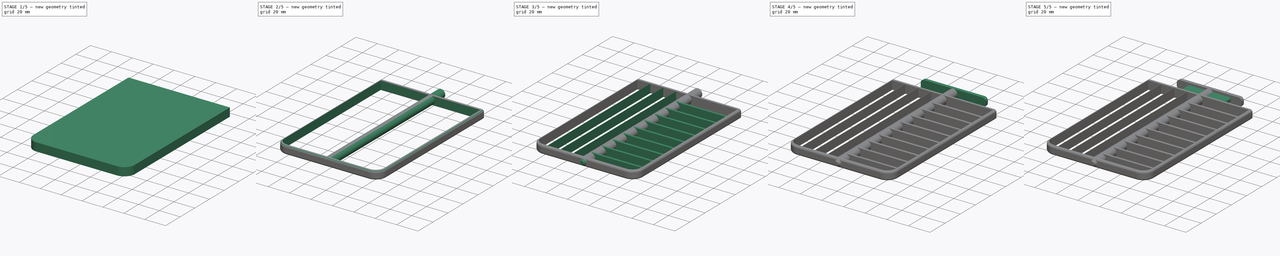
[diagram: build sequence overview — one tinted view per stage of 5, left to right]
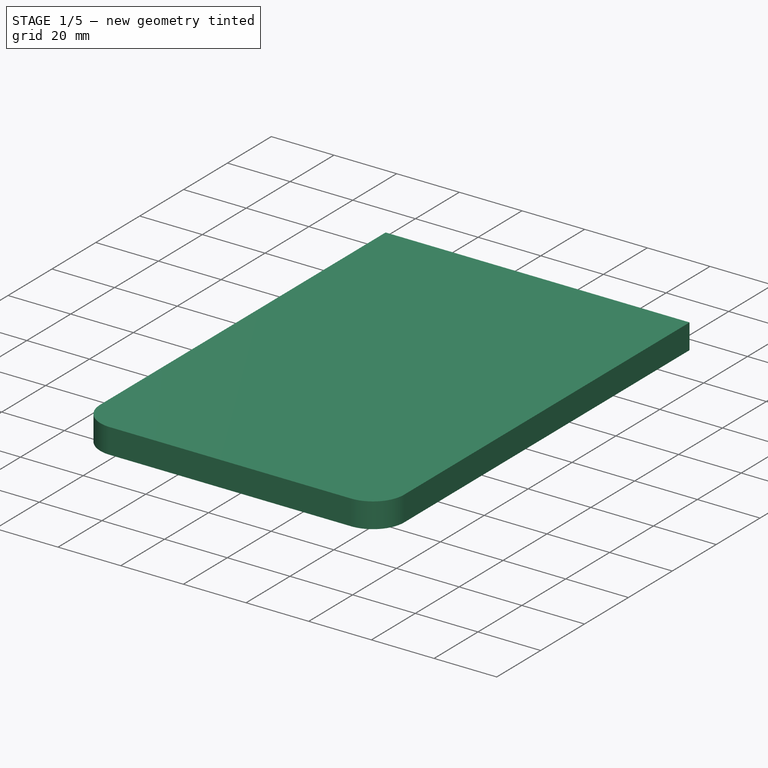
[diagram: stage 1 of 5 — iso view after this stage's code; geometry added in this stage tinted green]
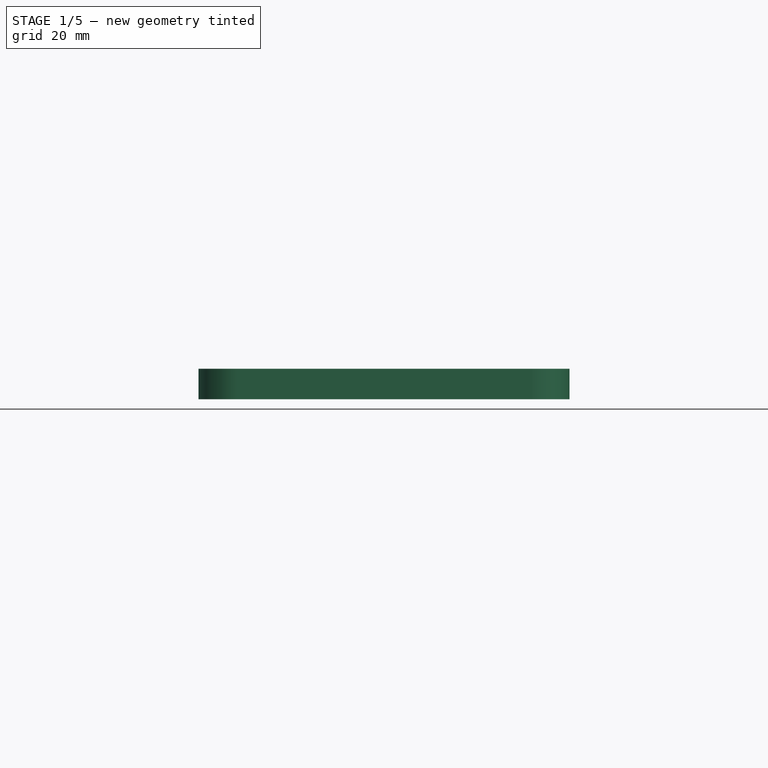
[diagram: stage 1 of 5 — front view after this stage's code; geometry added in this stage tinted green]
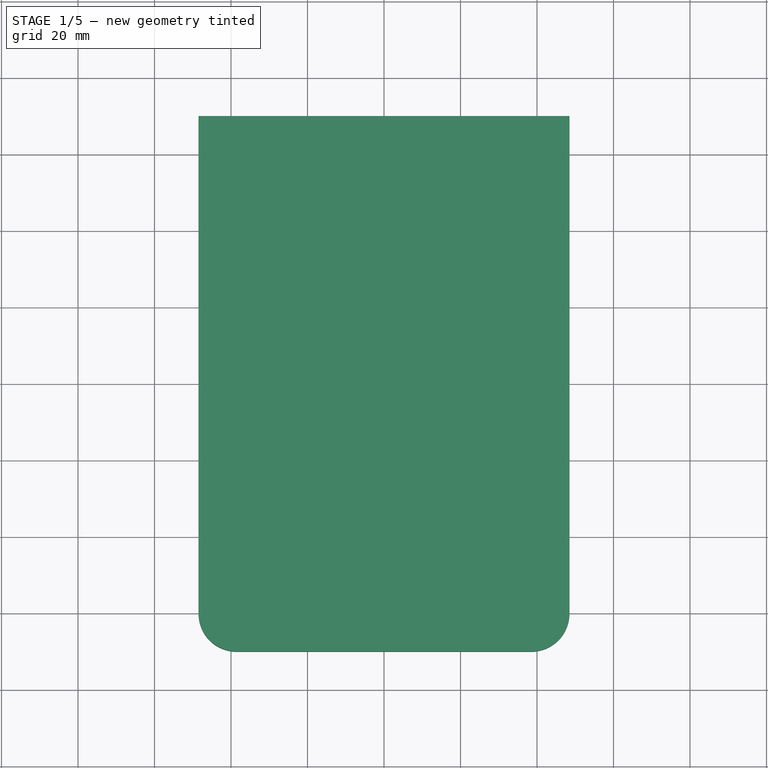
[diagram: stage 1 of 5 — top view after this stage's code; geometry added in this stage tinted green]
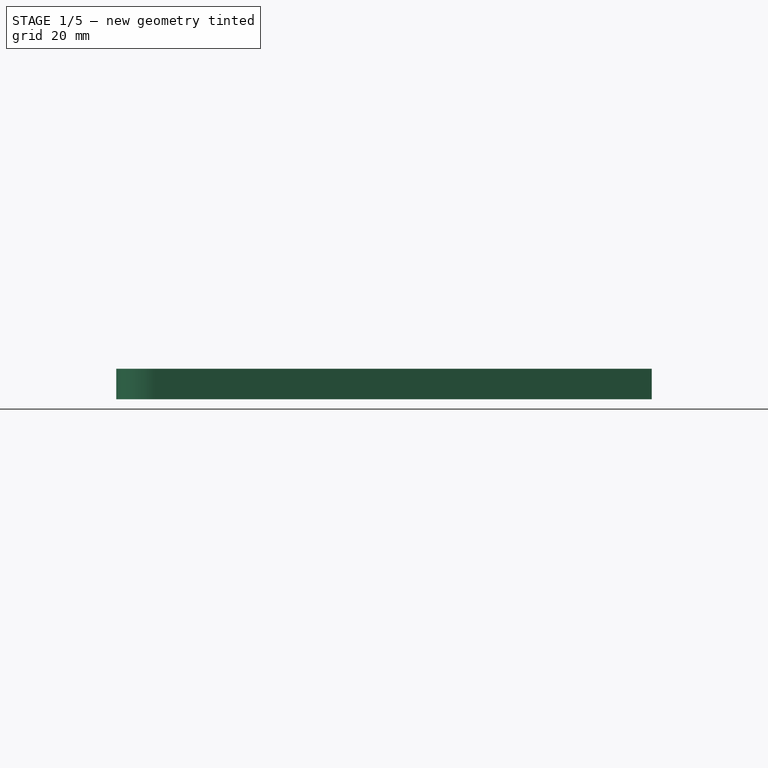
[diagram: stage 1 of 5 — right view after this stage's code; geometry added in this stage tinted green]
FCSTD DOCUMENT  (FreeCAD 1.0R38806 (Git))
Label: CheeseCutter 5
License: All rights reserved
LicenseURL: https://en.wikipedia.org/wiki/All_rights_reserved
objects: PartDesign::Fillet×9, Sketcher::SketchObject×8, PartDesign::Pad×7, PartDesign::Pocket×1, PartDesign::Body×1
note: 68 computed .brp shape members not serialized (recipe doc carries the construction recipe); baked Part::Feature solids carry a one-line shape summary decoded from their .brp

FEATURE [Sketcher::SketchObject] Sketch
  ArcFitTolerance = 1e-06
  AttachmentSupport = -> [XY_Plane]
  FullyConstrained = true
  MakeInternals = false
  MapMode = 5
  sketch-geometry (5):
    g0: LineSegment StartX=-48.5 StartY=-70 StartZ=0 EndX=48.5 EndY=-70 EndZ=0
    g1: LineSegment StartX=48.5 StartY=-70 StartZ=0 EndX=48.5 EndY=70 EndZ=0
    g2: LineSegment StartX=48.5 StartY=70 StartZ=0 EndX=-48.5 EndY=70 EndZ=0
    g3: LineSegment StartX=-48.5 StartY=70 StartZ=0 EndX=-48.5 EndY=-70 EndZ=0
    g4: GeomPoint [constr] X=0 Y=0 Z=0
  constraints (12):
    c: Coincident(g0,g1)
    c: Coincident(g1,g2)
    c: Coincident(g2,g3)
    c: Coincident(g3,g0)
    c: Horizontal(g0)
    c: Horizontal(g2)
    c: Vertical(g1)
    c: Vertical(g3)
    c: Symmetric(g2,g0,g4)
    c: Distance(g1,g3) = 97  'extWidth'
    c: Distance(g0,g2) = 140  'extHeight'
    c: Coincident(g4,g-1)
FEATURE [PartDesign::Pad] Pad
  Direction = (0,0,1)
  Length = 8
  Length2 = 10
  Midplane = true
  Profile = -> Sketch
  ReferenceAxis = -> Sketch [N_Axis]
  Refine = true
  Suppressed = false
  Type = 0
FEATURE [PartDesign::Fillet] Fillet
  Base = -> Pad [Edge1]
  BaseFeature = -> Pad
  Radius = 10
  Refine = true
  SupportTransform = false
  Suppressed = false
  UseAllEdges = false
FEATURE [PartDesign::Fillet] Fillet001
  Base = -> Fillet [Edge3]
  BaseFeature = -> Fillet
  Radius = 10
  Refine = true
  SupportTransform = false
  Suppressed = false
  UseAllEdges = false
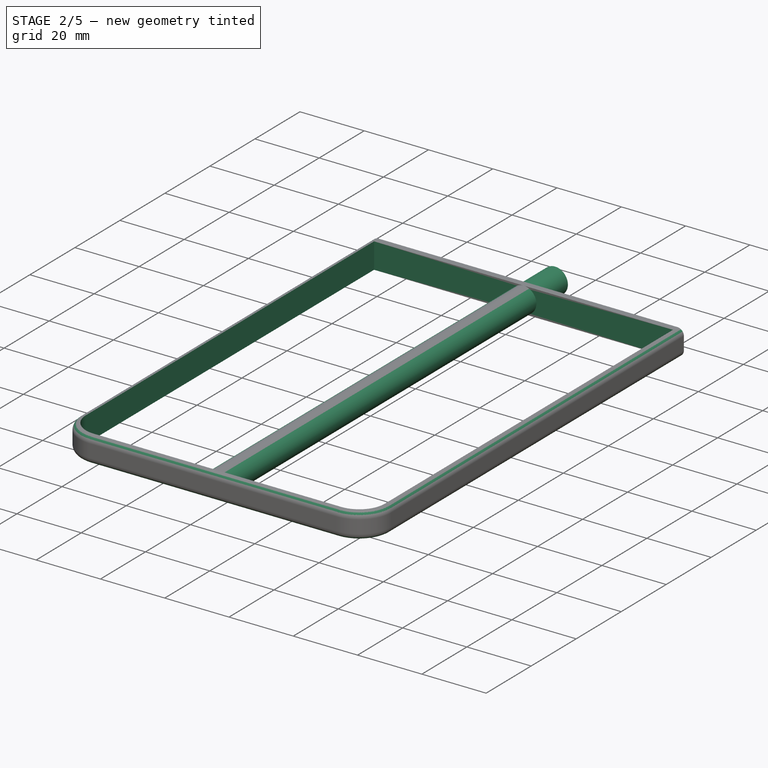
[diagram: stage 2 of 5 — iso view after this stage's code; geometry added in this stage tinted green]
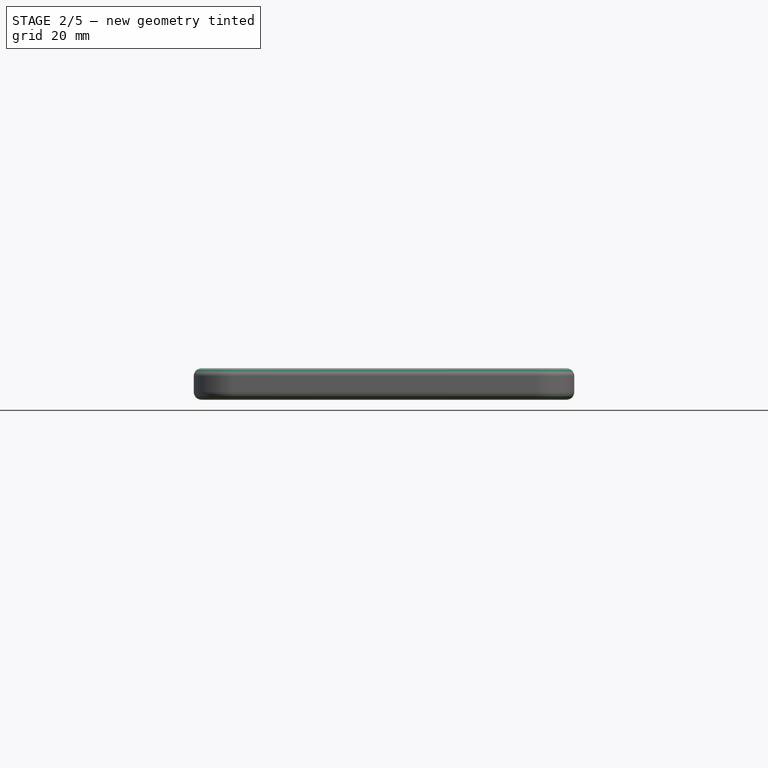
[diagram: stage 2 of 5 — front view after this stage's code; geometry added in this stage tinted green]
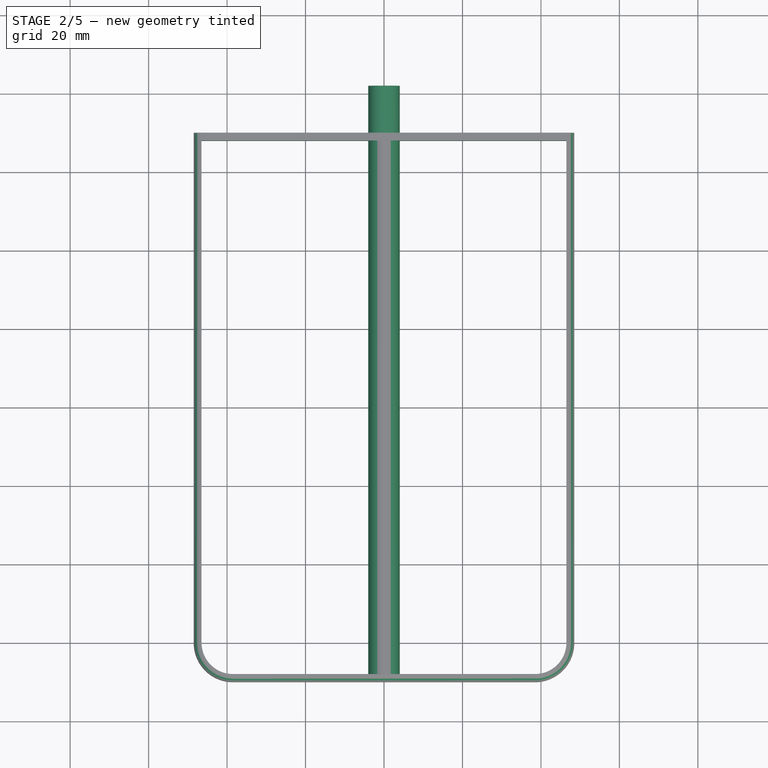
[diagram: stage 2 of 5 — top view after this stage's code; geometry added in this stage tinted green]
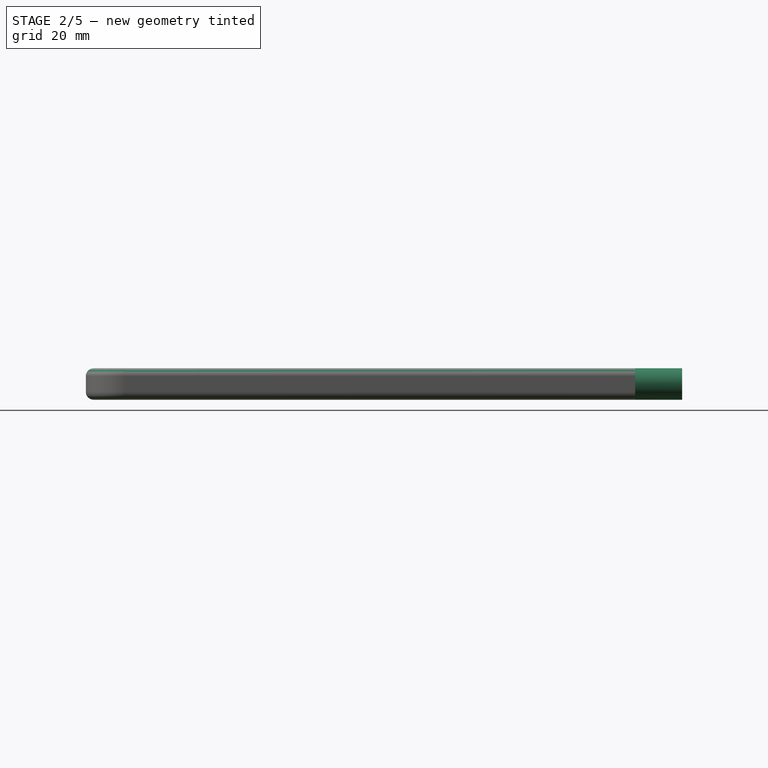
[diagram: stage 2 of 5 — right view after this stage's code; geometry added in this stage tinted green]
FEATURE [Sketcher::SketchObject] Sketch001
  ArcFitTolerance = 1e-06
  AttachmentSupport = -> [Fillet001]
  FullyConstrained = true
  MakeInternals = false
  MapMode = 5
  Placement = pos=(0,0,4) rot=(0,0,1;0rad)
  sketch-geometry (9):
    g0: LineSegment StartX=-38.5 StartY=-68 StartZ=0 EndX=38.5 EndY=-68 EndZ=0
    g1: LineSegment StartX=46.5 StartY=-60 StartZ=0 EndX=46.5 EndY=68 EndZ=0
    g2: LineSegment StartX=46.5 StartY=68 StartZ=0 EndX=-46.5 EndY=68 EndZ=0
    g3: LineSegment StartX=-46.5 StartY=68 StartZ=0 EndX=-46.5 EndY=-60 EndZ=0
    g4: GeomPoint [constr] X=0 Y=0 Z=0
    g5: ArcOfCircle CenterX=-38.5 CenterY=-60 CenterZ=0 NormalX=0 NormalY=0 NormalZ=1 AngleXU=0 Radius=8 StartAngle=3.14159 EndAngle=4.71239
    g6: GeomPoint [constr] X=-46.5 Y=-68 Z=0
    g7: ArcOfCircle CenterX=38.5 CenterY=-60 CenterZ=0 NormalX=0 NormalY=0 NormalZ=1 AngleXU=0 Radius=8 StartAngle=4.71239 EndAngle=6.28319
    g8: GeomPoint [constr] X=46.5 Y=-68 Z=0
  constraints (20):
    c: Coincident(g1,g2)
    c: Coincident(g2,g3)
    c: Horizontal(g0)
    c: Horizontal(g2)
    c: Vertical(g1)
    c: Vertical(g3)
    c: Symmetric(g2,g6,g4)
    c: Distance(g8,g6) = 93
    c: Distance(g6,g2) = 136
    c: Coincident(g4,g-1)
    c: PointOnObject(g6,g3)
    c: PointOnObject(g6,g0)
    c: Tangent(g3,g5) = -1.5708
    c: Tangent(g0,g5) = -1.5708
    c: Radius(g5) = 8
    c: PointOnObject(g8,g1)
    c: PointOnObject(g8,g0)
    c: Tangent(g1,g7) = -1.5708
    c: Tangent(g0,g7) = -1.5708
    c: Radius(g7) = 8
FEATURE [PartDesign::Pocket] Pocket
  BaseFeature = -> Fillet001
  Direction = (0,0,-1)
  Length = 5
  Length2 = 5
  Profile = -> Sketch001
  ReferenceAxis = -> Sketch001 [N_Axis]
  Refine = true
  Suppressed = false
  Type = 1
FEATURE [PartDesign::Fillet] Fillet002
  Base = -> Pocket [Edge21,Edge19,Edge4,Edge17,Edge20]
  BaseFeature = -> Pocket
  Radius = 1.99
  Refine = true
  SupportTransform = false
  Suppressed = false
  UseAllEdges = false
FEATURE [PartDesign::Fillet] Fillet003
  Base = -> Fillet002 [Edge12,Edge6,Edge3,Edge11,Edge13]
  BaseFeature = -> Fillet002
  Radius = 1.99
  Refine = true
  SupportTransform = false
  Suppressed = false
  UseAllEdges = false
FEATURE [Sketcher::SketchObject] Sketch002
  ArcFitTolerance = 1e-06
  AttachmentSupport = -> [Fillet003]
  FullyConstrained = true
  MakeInternals = false
  MapMode = 5
  Placement = pos=(0,-68,0) rot=(0,0.707107,0.707107;3.14159rad)
  sketch-geometry (1):
    g0: Circle CenterX=0 CenterY=0 CenterZ=0 NormalX=0 NormalY=0 NormalZ=1 AngleXU=0 Radius=4
  constraints (2):
    c: Diameter(g0) = 8
    c: Coincident(g0,g-1)
FEATURE [PartDesign::Pad] Pad001
  BaseFeature = -> Fillet003
  Direction = (0,1,-2e-16)
  Length = 150
  Length2 = 10
  Profile = -> Sketch002
  ReferenceAxis = -> Sketch002 [N_Axis]
  Refine = true
  Suppressed = false
  Type = 0
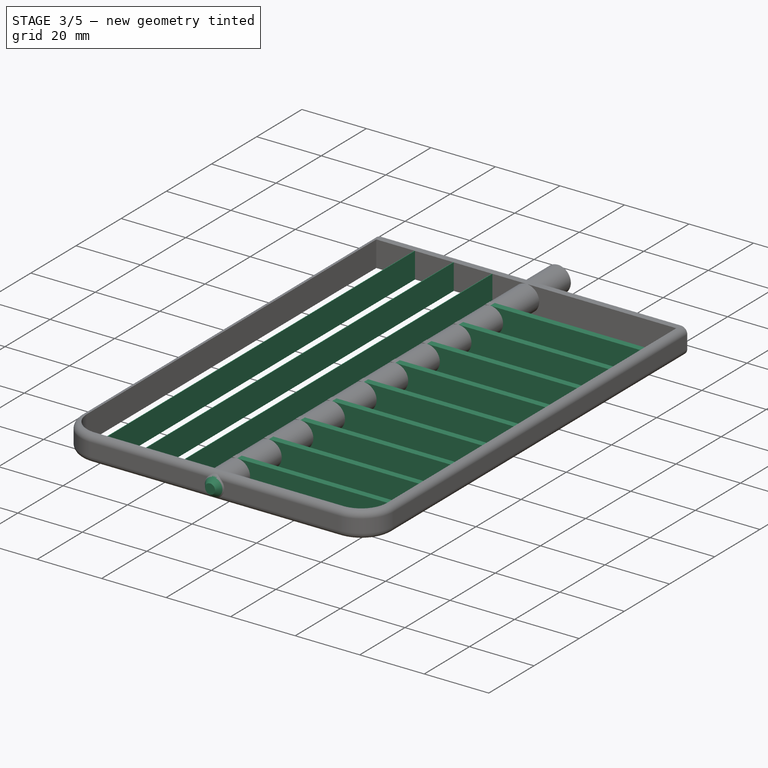
[diagram: stage 3 of 5 — iso view after this stage's code; geometry added in this stage tinted green]
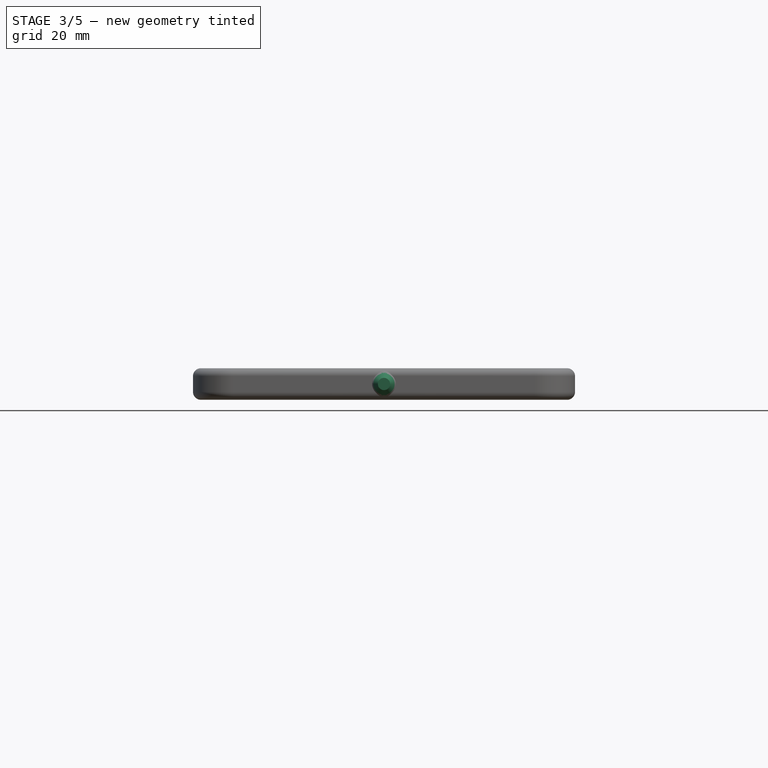
[diagram: stage 3 of 5 — front view after this stage's code; geometry added in this stage tinted green]
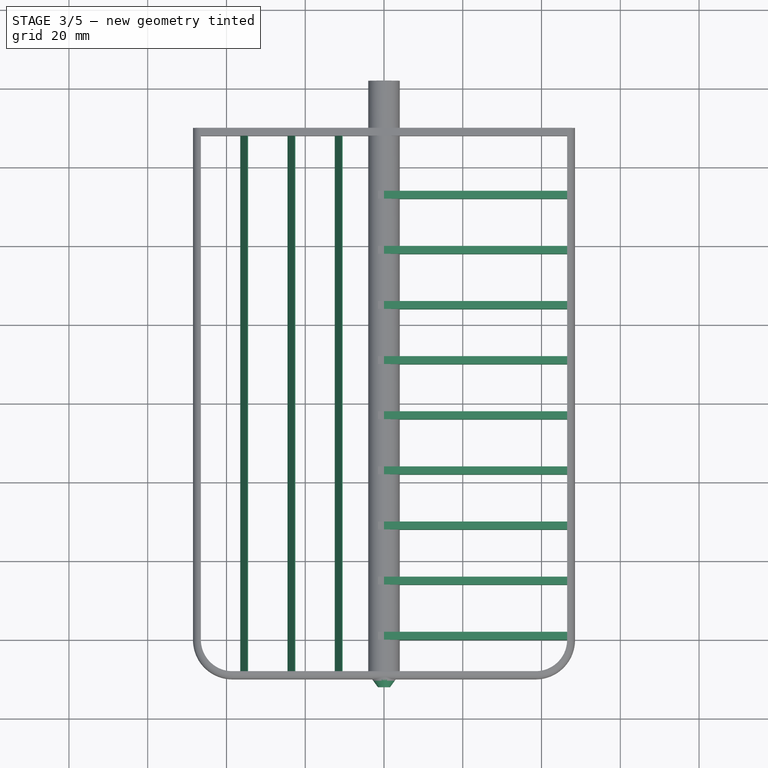
[diagram: stage 3 of 5 — top view after this stage's code; geometry added in this stage tinted green]
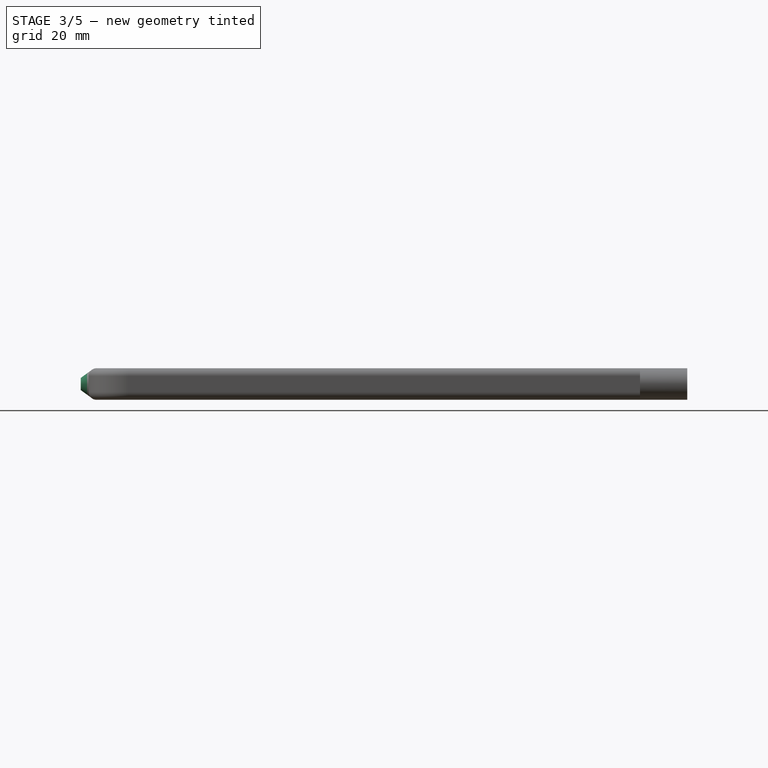
[diagram: stage 3 of 5 — right view after this stage's code; geometry added in this stage tinted green]
FEATURE [Sketcher::SketchObject] Sketch003
  ArcFitTolerance = 1e-06
  AttachmentSupport = -> [Pad001]
  FullyConstrained = true
  MakeInternals = false
  MapMode = 5
  Placement = pos=(0,-70,0) rot=(1,0,0;1.5708rad)
  sketch-geometry (1):
    g0: Circle CenterX=0 CenterY=0 CenterZ=0 NormalX=0 NormalY=0 NormalZ=1 AngleXU=0 Radius=3
  constraints (2):
    c: Diameter(g0) = 6
    c: Coincident(g0,g-1)
FEATURE [PartDesign::Pad] Pad002
  BaseFeature = -> Pad001
  Direction = (0,-1,2e-16)
  Length = 2
  Length2 = 0.5
  Profile = -> Sketch003
  ReferenceAxis = -> Sketch003 [N_Axis]
  Refine = true
  Suppressed = false
  TaperAngle = -36
  TaperAngle2 = 36
  Type = 4
FEATURE [Sketcher::SketchObject] Sketch004
  ArcFitTolerance = 1e-06
  AttachmentSupport = -> [Pad002]
  ExternalGeometry = -> [Sketch001,Pad002]
  FullyConstrained = true
  MakeInternals = false
  MapMode = 5
  Placement = pos=(46.5,0,0) rot=(0.57735,-0.57735,-0.57735;2.0944rad)
  sketch-geometry (45):
    g0: LineSegment StartX=-54 StartY=4 StartZ=0 EndX=-54 EndY=4e-16 EndZ=0
    g1: LineSegment StartX=-54 StartY=4e-16 StartZ=0 EndX=-52.2 EndY=-4 EndZ=0
    g2: LineSegment StartX=-52.2 StartY=-4 StartZ=0 EndX=-52 EndY=-4 EndZ=0
    g3: LineSegment StartX=-52 StartY=-4 StartZ=0 EndX=-52 EndY=4 EndZ=0
    g4: LineSegment StartX=-52 StartY=4 StartZ=0 EndX=-54 EndY=4 EndZ=0
    g5: LineSegment StartX=-40 StartY=4 StartZ=0 EndX=-40 EndY=0 EndZ=0
    g6: LineSegment StartX=-40 StartY=0 StartZ=0 EndX=-38.2 EndY=-4 EndZ=0
    g7: LineSegment StartX=-38.2 StartY=-4 StartZ=0 EndX=-38 EndY=-4 EndZ=0
    g8: LineSegment StartX=-38 StartY=-4 StartZ=0 EndX=-38 EndY=4 EndZ=0
    g9: LineSegment StartX=-38 StartY=4 StartZ=0 EndX=-40 EndY=4 EndZ=0
    g10: LineSegment StartX=-26 StartY=4 StartZ=0 EndX=-26 EndY=0 EndZ=0
    g11: LineSegment StartX=-26 StartY=0 StartZ=0 EndX=-24.2 EndY=-4 EndZ=0
    g12: LineSegment StartX=-24.2 StartY=-4 StartZ=0 EndX=-24 EndY=-4 EndZ=0
    g13: LineSegment StartX=-24 StartY=-4 StartZ=0 EndX=-24 EndY=4 EndZ=0
    g14: LineSegment StartX=-24 StartY=4 StartZ=0 EndX=-26 EndY=4 EndZ=0
    g15: LineSegment StartX=-12 StartY=4 StartZ=0 EndX=-12 EndY=0 EndZ=0
    g16: LineSegment StartX=-12 StartY=0 StartZ=0 EndX=-10.2 EndY=-4 EndZ=0
    g17: LineSegment StartX=-10.2 StartY=-4 StartZ=0 EndX=-10 EndY=-4 EndZ=0
    g18: LineSegment StartX=-10 StartY=-4 StartZ=0 EndX=-10 EndY=4 EndZ=0
    g19: LineSegment StartX=-10 StartY=4 StartZ=0 EndX=-12 EndY=4 EndZ=0
    g20: LineSegment StartX=2 StartY=4 StartZ=0 EndX=2 EndY=0 EndZ=0
    g21: LineSegment StartX=2 StartY=0 StartZ=0 EndX=3.8 EndY=-4 EndZ=0
    g22: LineSegment StartX=3.8 StartY=-4 StartZ=0 EndX=4 EndY=-4 EndZ=0
    g23: LineSegment StartX=4 StartY=-4 StartZ=0 EndX=4 EndY=4 EndZ=0
    g24: LineSegment StartX=4 StartY=4 StartZ=0 EndX=2 EndY=4 EndZ=0
    g25: LineSegment StartX=16 StartY=4 StartZ=0 EndX=16 EndY=0 EndZ=0
    g26: LineSegment StartX=16 StartY=0 StartZ=0 EndX=17.8 EndY=-4 EndZ=0
    g27: LineSegment StartX=17.8 StartY=-4 StartZ=0 EndX=18 EndY=-4 EndZ=0
    g28: LineSegment StartX=18 StartY=-4 StartZ=0 EndX=18 EndY=4 EndZ=0
    g29: LineSegment StartX=18 StartY=4 StartZ=0 EndX=16 EndY=4 EndZ=0
    g30: LineSegment StartX=30 StartY=4 StartZ=0 EndX=30 EndY=0 EndZ=0
    g31: LineSegment StartX=30 StartY=0 StartZ=0 EndX=31.8 EndY=-4 EndZ=0
    g32: LineSegment StartX=31.8 StartY=-4 StartZ=0 EndX=32 EndY=-4 EndZ=0
    g33: LineSegment StartX=32 StartY=-4 StartZ=0 EndX=32 EndY=4 EndZ=0
    g34: LineSegment StartX=32 StartY=4 StartZ=0 EndX=30 EndY=4 EndZ=0
    g35: LineSegment StartX=44 StartY=4 StartZ=0 EndX=44 EndY=0 EndZ=0
    g36: LineSegment StartX=44 StartY=0 StartZ=0 EndX=45.8 EndY=-4 EndZ=0
    g37: LineSegment StartX=45.8 StartY=-4 StartZ=0 EndX=46 EndY=-4 EndZ=0
    g38: LineSegment StartX=46 StartY=-4 StartZ=0 EndX=46 EndY=4 EndZ=0
    g39: LineSegment StartX=46 StartY=4 StartZ=0 EndX=44 EndY=4 EndZ=0
    g40: LineSegment StartX=58 StartY=4 StartZ=0 EndX=58 EndY=0 EndZ=0
    g41: LineSegment StartX=58 StartY=0 StartZ=0 EndX=59.8 EndY=-4 EndZ=0
    g42: LineSegment StartX=59.8 StartY=-4 StartZ=0 EndX=60 EndY=-4 EndZ=0
    g43: LineSegment StartX=60 StartY=-4 StartZ=0 EndX=60 EndY=4 EndZ=0
    g44: LineSegment StartX=60 StartY=4 StartZ=0 EndX=58 EndY=4 EndZ=0
  constraints (135):
    c: Vertical(g0)
    c: Coincident(g0,g1)
    c: Coincident(g1,g2)
    c: Coincident(g2,g3)
    c: Vertical(g3)
    c: Coincident(g3,g4)
    c: Coincident(g4,g0)
    c: Horizontal(g4)
    c: Horizontal(g2)
    c: DistanceY(g0,g-5) = 0
    c: DistanceY(g-5,g1) = 0
    c: DistanceX(g2,g2) = 0.2
    c: DistanceX(g4,g4) = 2
    c: DistanceX(g-5,g0) = 14  'hBl;adeDist'
    c: DistanceY(g0,g0) = 4
    c: Vertical(g5)
    c: Vertical(g10)
    c: Vertical(g15)
    c: Vertical(g20)
    c: Vertical(g25)
    c: Vertical(g30)
    c: Vertical(g35)
    c: Vertical(g40)
    c: Coincident(g5,g6)
    c: Coincident(g10,g11)
    c: Coincident(g15,g16)
    c: Coincident(g20,g21)
    c: Coincident(g25,g26)
    c: Coincident(g30,g31)
    c: Coincident(g35,g36)
    c: Coincident(g40,g41)
    c: Coincident(g6,g7)
    c: Coincident(g11,g12)
    c: Coincident(g16,g17)
    c: Coincident(g21,g22)
    c: Coincident(g26,g27)
    c: Coincident(g31,g32)
    c: Coincident(g36,g37)
    c: Coincident(g41,g42)
    c: Coincident(g7,g8)
    c: Coincident(g12,g13)
    c: Coincident(g17,g18)
    c: Coincident(g22,g23)
    c: Coincident(g27,g28)
    c: Coincident(g32,g33)
    c: Coincident(g37,g38)
    c: Coincident(g42,g43)
    c: Vertical(g8)
    c: Vertical(g13)
    c: Vertical(g18)
    c: Vertical(g23)
    c: Vertical(g28)
    c: Vertical(g33)
    c: Vertical(g38)
    c: Vertical(g43)
    c: Coincident(g8,g9)
    c: Coincident(g13,g14)
    c: Coincident(g18,g19)
    c: Coincident(g23,g24)
    c: Coincident(g28,g29)
    c: Coincident(g33,g34)
    c: Coincident(g38,g39)
    c: Coincident(g43,g44)
    c: Coincident(g9,g5)
    c: Coincident(g14,g10)
    c: Coincident(g19,g15)
    c: Coincident(g24,g20)
    c: Coincident(g29,g25)
    c: Coincident(g34,g30)
    c: Coincident(g39,g35)
    c: Coincident(g44,g40)
    c: Horizontal(g9)
    c: Horizontal(g14)
    c: Horizontal(g19)
    c: Horizontal(g24)
    c: Horizontal(g29)
    c: Horizontal(g34)
    c: Horizontal(g39)
    c: Horizontal(g44)
    c: Horizontal(g7)
    c: Horizontal(g12)
    c: Horizontal(g17)
    c: Horizontal(g22)
    c: Horizontal(g27)
    c: Horizontal(g32)
    c: Horizontal(g37)
    c: Horizontal(g42)
    c: DistanceX(g7,g7) = 0.2
    c: DistanceX(g12,g12) = 0.2
    c: DistanceX(g17,g17) = 0.2
    c: DistanceX(g22,g22) = 0.2
    c: DistanceX(g27,g27) = 0.2
    c: DistanceX(g32,g32) = 0.2
    c: DistanceX(g37,g37) = 0.2
    c: DistanceX(g42,g42) = 0.2
    c: DistanceX(g9,g9) = 2
    c: DistanceX(g14,g14) = 2
    c: DistanceX(g19,g19) = 2
    c: DistanceX(g24,g24) = 2
    c: DistanceX(g29,g29) = 2
    c: DistanceX(g34,g34) = 2
    c: DistanceX(g39,g39) = 2
    c: DistanceX(g44,g44) = 2
    c: DistanceY(g5,g5) = 4
    c: DistanceY(g10,g10) = 4
    c: DistanceY(g15,g15) = 4
    c: DistanceY(g20,g20) = 4
    c: DistanceY(g25,g25) = 4
    c: DistanceY(g30,g30) = 4
    c: DistanceY(g35,g35) = 4
    c: DistanceY(g40,g40) = 4
    c: DistanceX(g38,g43) = 14
    c: DistanceX(g33,g38) = 14
    c: DistanceX(g28,g33) = 14
    c: DistanceX(g23,g28) = 14
    c: DistanceX(g18,g23) = 14
    c: DistanceX(g13,g18) = 14
    c: DistanceX(g8,g13) = 14
    c: DistanceX(g3,g8) = 14
    c: DistanceY(g7,g-5) = 0
    c: DistanceY(g12,g-5) = 0
    c: DistanceY(g-5,g17) = 0
    c: DistanceY(g-5,g22) = 0
    c: DistanceY(g27,g-5) = 0
    c: DistanceY(g32,g-5) = 0
    c: DistanceY(g37,g-5) = 0
    c: DistanceY(g42,g-5) = 0
    c: DistanceY(g7,g8) = 8
    c: DistanceY(g12,g13) = 8
    c: DistanceY(g17,g18) = 8
    c: DistanceY(g22,g23) = 8
    c: DistanceY(g32,g33) = 8
    c: DistanceY(g37,g38) = 8
    c: DistanceY(g42,g43) = 8
    c: DistanceY(g27,g28) = 8
FEATURE [PartDesign::Pad] Pad003
  BaseFeature = -> Pad002
  Direction = (-1,0,0)
  Length = 48
  Length2 = 10
  Profile = -> Sketch004
  ReferenceAxis = -> Sketch004 [N_Axis]
  Refine = true
  Suppressed = false
  Type = 0
FEATURE [Sketcher::SketchObject] Sketch005
  ArcFitTolerance = 1e-06
  AttachmentSupport = -> [Pad003]
  ExternalGeometry = -> [Pad003,Sketch001]
  FullyConstrained = true
  MakeInternals = false
  MapMode = 5
  Placement = pos=(0,68,0) rot=(1,0,0;1.5708rad)
  sketch-geometry (15):
    g0: LineSegment StartX=-34.7 StartY=4 StartZ=0 EndX=-34.5 EndY=4 EndZ=0
    g1: LineSegment StartX=-34.5 StartY=4 StartZ=0 EndX=-34.5 EndY=-4 EndZ=0
    g2: LineSegment StartX=-34.5 StartY=-4 StartZ=0 EndX=-36.5 EndY=-4 EndZ=0
    g3: LineSegment StartX=-36.5 StartY=-4 StartZ=0 EndX=-36.5 EndY=0 EndZ=0
    g4: LineSegment StartX=-36.5 StartY=0 StartZ=0 EndX=-34.7 EndY=4 EndZ=0
    g5: LineSegment StartX=-22.7 StartY=4 StartZ=0 EndX=-22.5 EndY=4 EndZ=0
    g6: LineSegment StartX=-22.5 StartY=4 StartZ=0 EndX=-22.5 EndY=-4 EndZ=0
    g7: LineSegment StartX=-22.5 StartY=-4 StartZ=0 EndX=-24.5 EndY=-4 EndZ=0
    g8: LineSegment StartX=-24.5 StartY=-4 StartZ=0 EndX=-24.5 EndY=0 EndZ=0
    g9: LineSegment StartX=-24.5 StartY=0 StartZ=0 EndX=-22.7 EndY=4 EndZ=0
    g10: LineSegment StartX=-10.7 StartY=4 StartZ=0 EndX=-10.5 EndY=4 EndZ=0
    g11: LineSegment StartX=-10.5 StartY=4 StartZ=0 EndX=-10.5 EndY=-4 EndZ=0
    g12: LineSegment StartX=-10.5 StartY=-4 StartZ=0 EndX=-12.5 EndY=-4 EndZ=0
    g13: LineSegment StartX=-12.5 StartY=-4 StartZ=0 EndX=-12.5 EndY=0 EndZ=0
    g14: LineSegment StartX=-12.5 StartY=0 StartZ=0 EndX=-10.7 EndY=4 EndZ=0
  constraints (45):
    c: Coincident(g0,g1)
    c: Coincident(g1,g2)
    c: Horizontal(g2)
    c: Coincident(g2,g3)
    c: Coincident(g3,g4)
    c: Coincident(g4,g0)
    c: Vertical(g1)
    c: Vertical(g3)
    c: Horizontal(g0)
    c: DistanceY(g3,g3) = 4
    c: DistanceY(g1,g1) = 8
    c: DistanceX(g2,g2) = 2
    c: DistanceX(g0,g0) = 0.2
    c: DistanceX(g-5,g1) = 12
    c: DistanceY(g2,g-5) = 0
    c: Coincident(g5,g6)
    c: Coincident(g10,g11)
    c: Coincident(g6,g7)
    c: Coincident(g11,g12)
    c: Horizontal(g7)
    c: Horizontal(g12)
    c: Coincident(g7,g8)
    c: Coincident(g12,g13)
    c: Coincident(g8,g9)
    c: Coincident(g13,g14)
    c: Coincident(g9,g5)
    c: Coincident(g14,g10)
    c: Vertical(g6)
    c: Vertical(g11)
    c: Vertical(g8)
    c: Vertical(g13)
    c: Horizontal(g5)
    c: Horizontal(g10)
    c: DistanceY(g8,g8) = 4
    c: DistanceY(g13,g13) = 4
    c: DistanceY(g6,g6) = 8
    c: DistanceY(g11,g11) = 8
    c: DistanceX(g7,g7) = 2
    c: DistanceX(g12,g12) = 2
    c: DistanceX(g5,g5) = 0.2
    c: DistanceX(g10,g10) = 0.2
    c: DistanceX(g3,g8) = 12
    c: DistanceX(g8,g13) = 12
    c: DistanceY(g6,g-5) = 0
    c: DistanceY(g11,g-5) = 0
FEATURE [PartDesign::Pad] Pad004
  BaseFeature = -> Pad003
  Direction = (0,-1,0)
  Length = 10
  Length2 = 10
  Profile = -> Sketch005
  ReferenceAxis = -> Sketch005 [N_Axis]
  Refine = true
  Suppressed = false
  Type = 2
  UseCustomVector = true
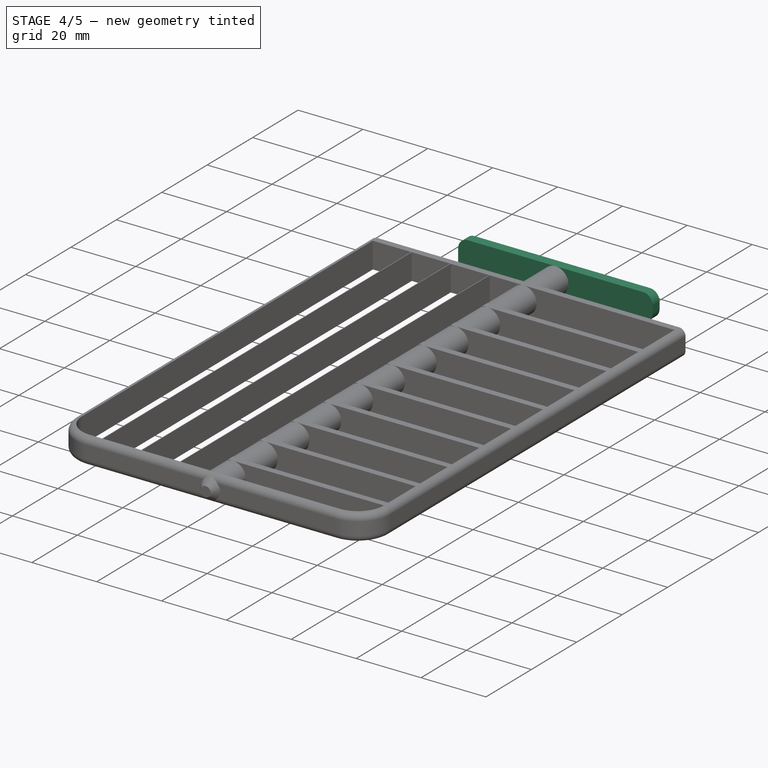
[diagram: stage 4 of 5 — iso view after this stage's code; geometry added in this stage tinted green]
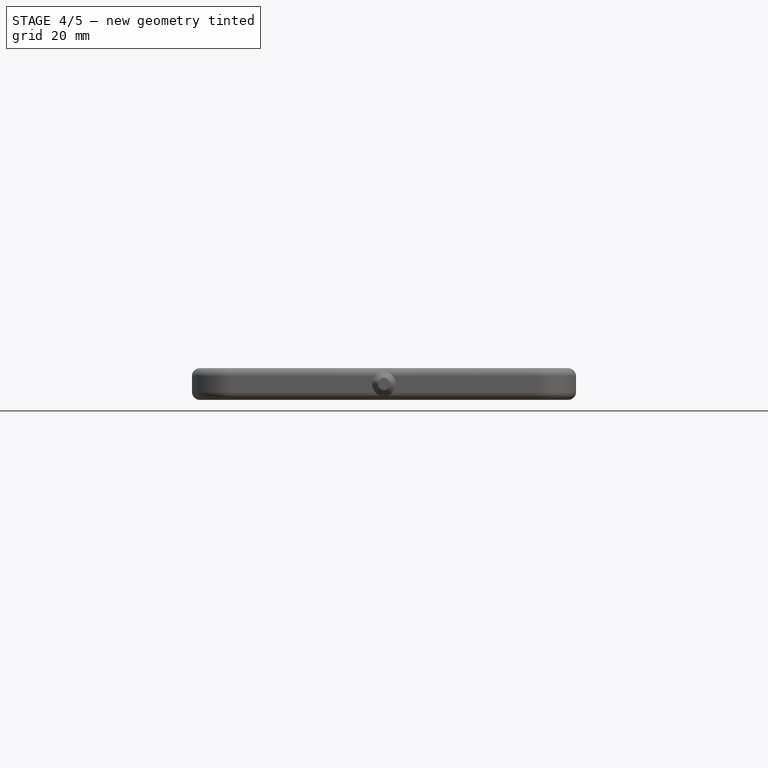
[diagram: stage 4 of 5 — front view after this stage's code; geometry added in this stage tinted green]
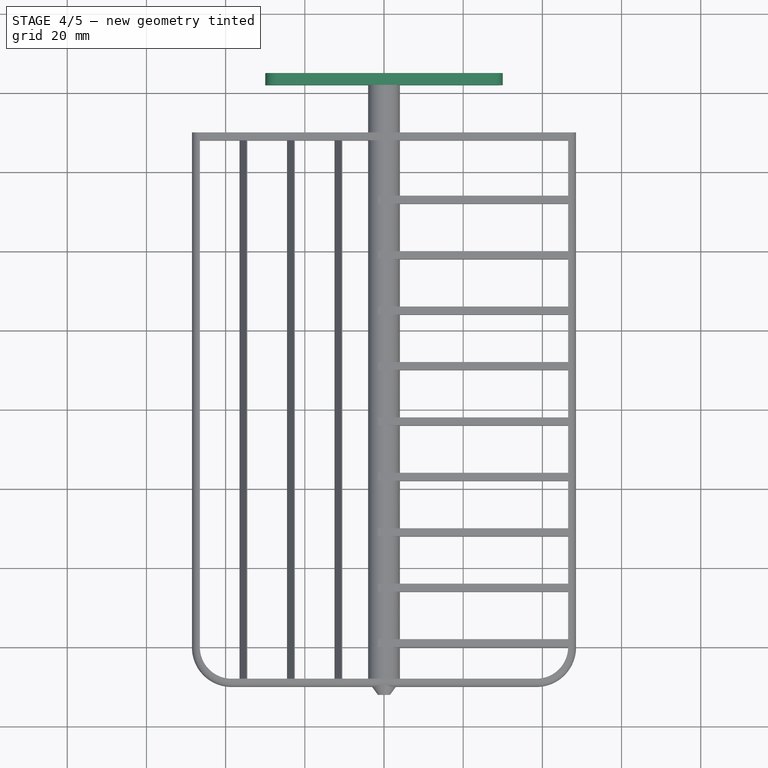
[diagram: stage 4 of 5 — top view after this stage's code; geometry added in this stage tinted green]
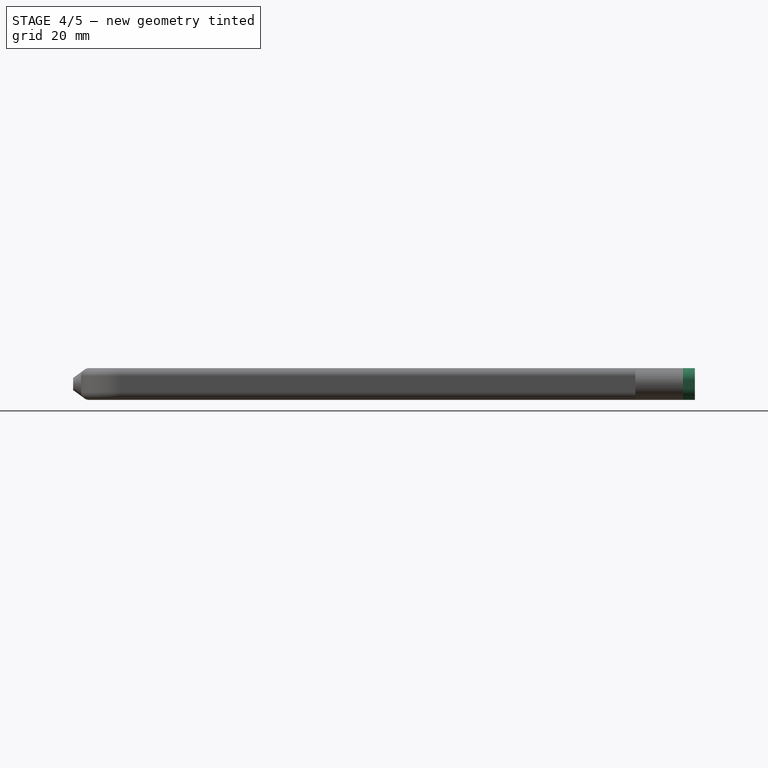
[diagram: stage 4 of 5 — right view after this stage's code; geometry added in this stage tinted green]
FEATURE [Sketcher::SketchObject] Sketch006
  ArcFitTolerance = 1e-06
  AttachmentSupport = -> [Pad004]
  FullyConstrained = true
  MakeInternals = false
  MapMode = 5
  Placement = pos=(0,82,0) rot=(0,0.707107,0.707107;3.14159rad)
  sketch-geometry (5):
    g0: LineSegment StartX=-30 StartY=-4 StartZ=0 EndX=30 EndY=-4 EndZ=0
    g1: LineSegment StartX=30 StartY=-4 StartZ=0 EndX=30 EndY=4 EndZ=0
    g2: LineSegment StartX=30 StartY=4 StartZ=0 EndX=-30 EndY=4 EndZ=0
    g3: LineSegment StartX=-30 StartY=4 StartZ=0 EndX=-30 EndY=-4 EndZ=0
    g4: GeomPoint [constr] X=0 Y=0 Z=0
  constraints (12):
    c: Coincident(g0,g1)
    c: Coincident(g1,g2)
    c: Coincident(g2,g3)
    c: Coincident(g3,g0)
    c: Horizontal(g0)
    c: Horizontal(g2)
    c: Vertical(g1)
    c: Vertical(g3)
    c: Symmetric(g2,g0,g4)
    c: Distance(g1,g3) = 60
    c: Distance(g0,g2) = 8
    c: Coincident(g4,g-1)
FEATURE [PartDesign::Pad] Pad005
  BaseFeature = -> Pad004
  Direction = (0,1,-2e-16)
  Length = 3
  Length2 = 10
  Profile = -> Sketch006
  ReferenceAxis = -> Sketch006 [N_Axis]
  Refine = true
  Suppressed = false
  Type = 0
FEATURE [PartDesign::Fillet] Fillet004
  Base = -> Pad005 [Edge408]
  BaseFeature = -> Pad005
  Radius = 3
  Refine = true
  SupportTransform = false
  Suppressed = false
  UseAllEdges = false
FEATURE [PartDesign::Fillet] Fillet005
  Base = -> Fillet004 [Edge7]
  BaseFeature = -> Fillet004
  Radius = 3
  Refine = true
  SupportTransform = false
  Suppressed = false
  UseAllEdges = false
FEATURE [PartDesign::Fillet] Fillet006
  Base = -> Fillet005 [Edge19]
  BaseFeature = -> Fillet005
  Radius = 3
  Refine = true
  SupportTransform = false
  Suppressed = false
  UseAllEdges = false
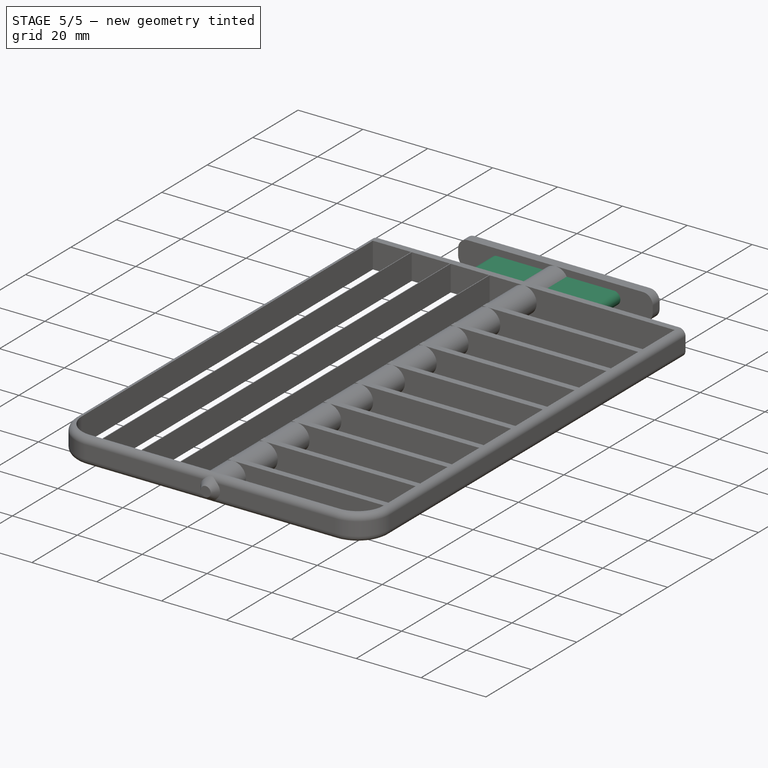
[diagram: stage 5 of 5 — iso view after this stage's code; geometry added in this stage tinted green]
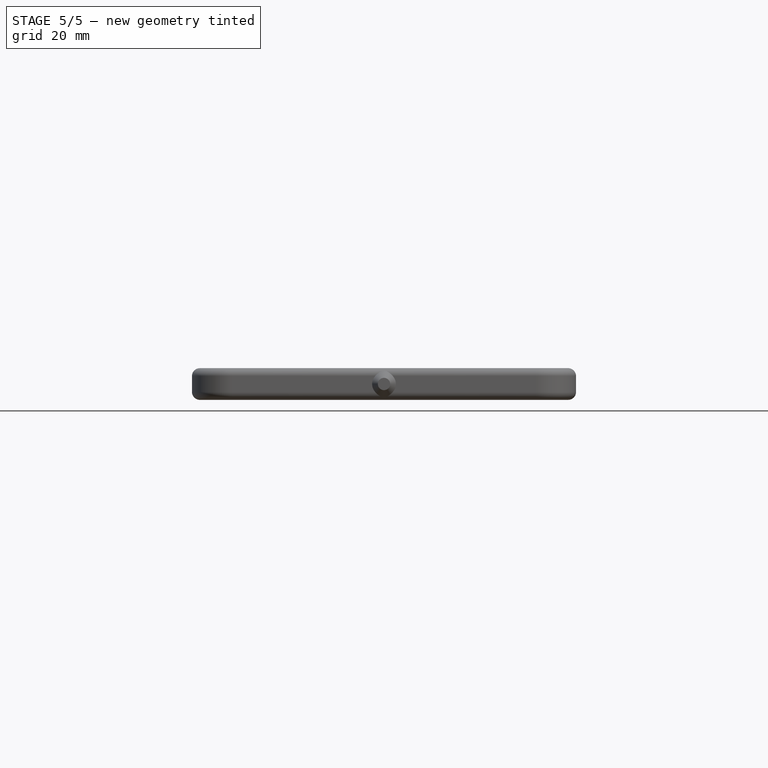
[diagram: stage 5 of 5 — front view after this stage's code; geometry added in this stage tinted green]
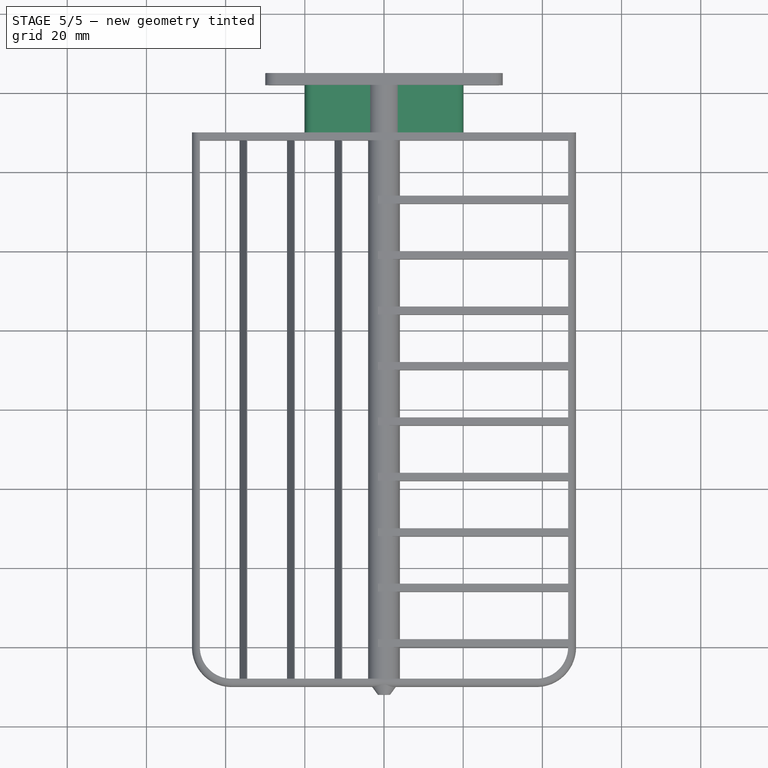
[diagram: stage 5 of 5 — top view after this stage's code; geometry added in this stage tinted green]
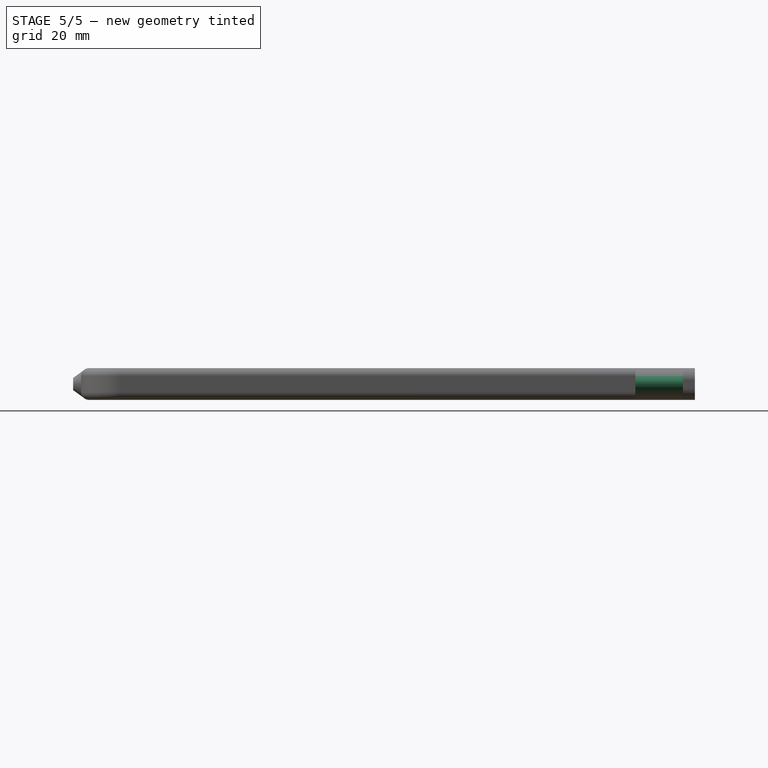
[diagram: stage 5 of 5 — right view after this stage's code; geometry added in this stage tinted green]
FEATURE [PartDesign::Fillet] Fillet007
  Base = -> Fillet006 [Edge28]
  BaseFeature = -> Fillet006
  Radius = 3
  Refine = true
  SupportTransform = false
  Suppressed = false
  UseAllEdges = false
FEATURE [Sketcher::SketchObject] Sketch007
  ArcFitTolerance = 1e-06
  AttachmentSupport = -> [Fillet007]
  FullyConstrained = true
  MakeInternals = false
  MapMode = 5
  Placement = pos=(0,82,0) rot=(1,0,0;1.5708rad)
  sketch-geometry (5):
    g0: LineSegment StartX=-20 StartY=-2 StartZ=0 EndX=20 EndY=-2 EndZ=0
    g1: LineSegment StartX=20 StartY=-2 StartZ=0 EndX=20 EndY=2 EndZ=0
    g2: LineSegment StartX=20 StartY=2 StartZ=0 EndX=-20 EndY=2 EndZ=0
    g3: LineSegment StartX=-20 StartY=2 StartZ=0 EndX=-20 EndY=-2 EndZ=0
    g4: GeomPoint [constr] X=0 Y=0 Z=0
  constraints (12):
    c: Coincident(g0,g1)
    c: Coincident(g1,g2)
    c: Coincident(g2,g3)
    c: Coincident(g3,g0)
    c: Horizontal(g0)
    c: Horizontal(g2)
    c: Vertical(g1)
    c: Vertical(g3)
    c: Symmetric(g2,g0,g4)
    c: Coincident(g4,g-1)
    c: DistanceX(g2,g1) = 40
    c: DistanceY(g0,g1) = 4
FEATURE [PartDesign::Pad] Pad006
  BaseFeature = -> Fillet007
  Direction = (0,-1,2e-16)
  Length = 12
  Length2 = 10
  Profile = -> Sketch007
  ReferenceAxis = -> Sketch007 [N_Axis]
  Refine = true
  Suppressed = false
  Type = 0
FEATURE [PartDesign::Fillet] Fillet008
  Base = -> Pad006 [Edge63,Edge54,Edge24,Edge23]
  BaseFeature = -> Pad006
  Radius = 1.99
  Refine = true
  SupportTransform = false
  Suppressed = false
  UseAllEdges = false
FEATURE [PartDesign::Body] Body
  AllowCompound = false
  Group = -> [Sketch,Pad,Fillet,Fillet001,Sketch001,Pocket,Fillet002,Fillet003,Sketch002,Pad001,Sketch003,Pad002,Sketch004,Pad003,Sketch005,Pad004,Sketch006,Pad005,Fillet004,Fillet005,Fillet006,Fillet007,Sketch007,Pad006,Fillet008]
  Origin = -> Origin
  Tip = -> Fillet008
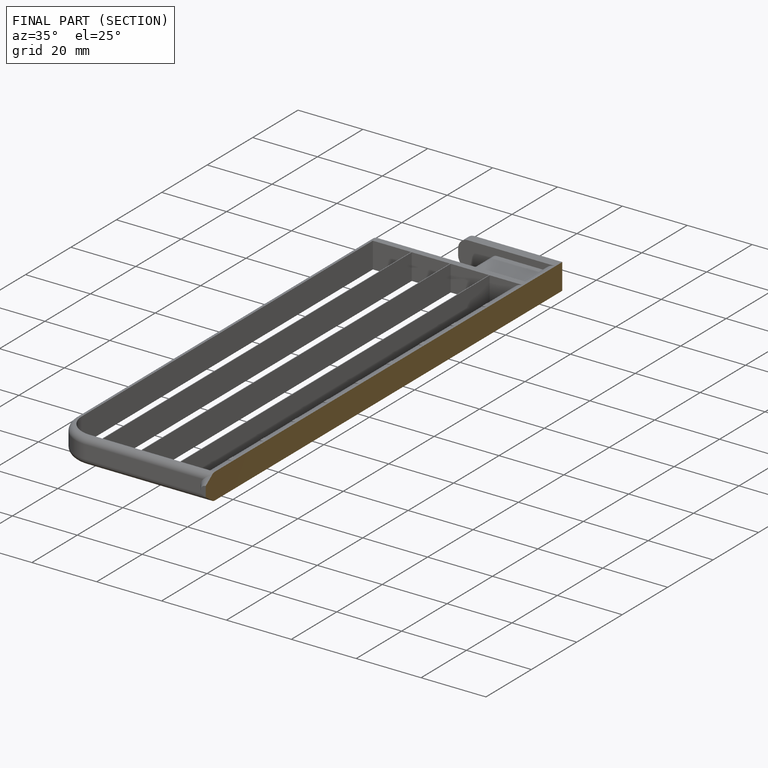
[diagram: finished part — half-section view (interior)]
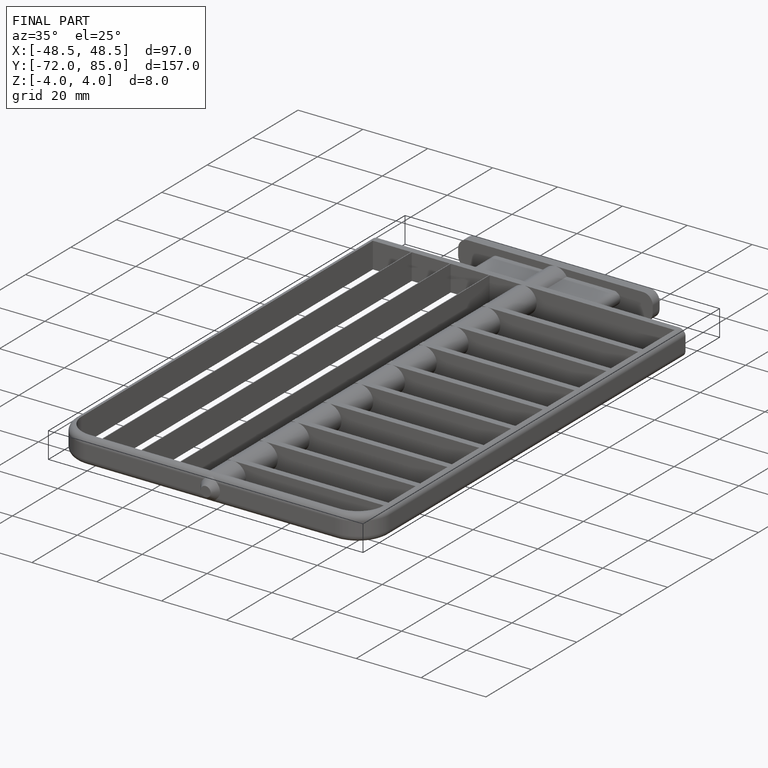
[diagram: finished part — iso view with bounding-box wireframe]
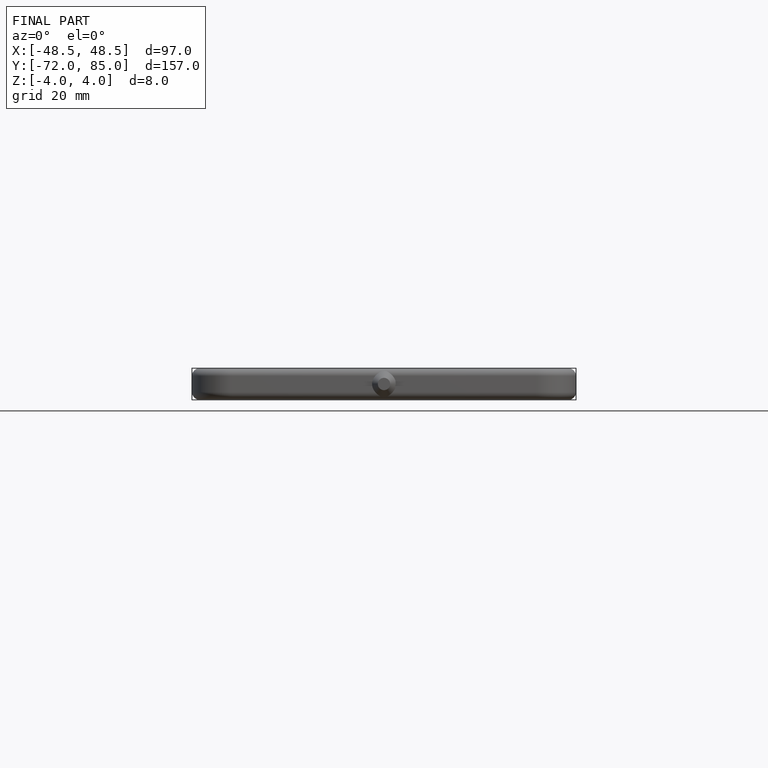
[diagram: finished part — front view with bounding-box wireframe]
